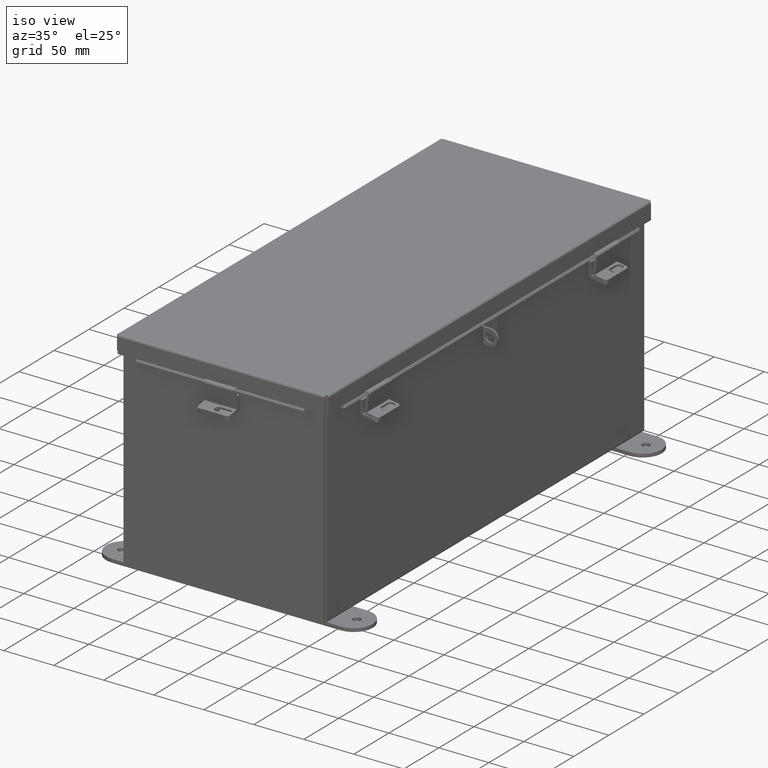
[diagram: clean part render]
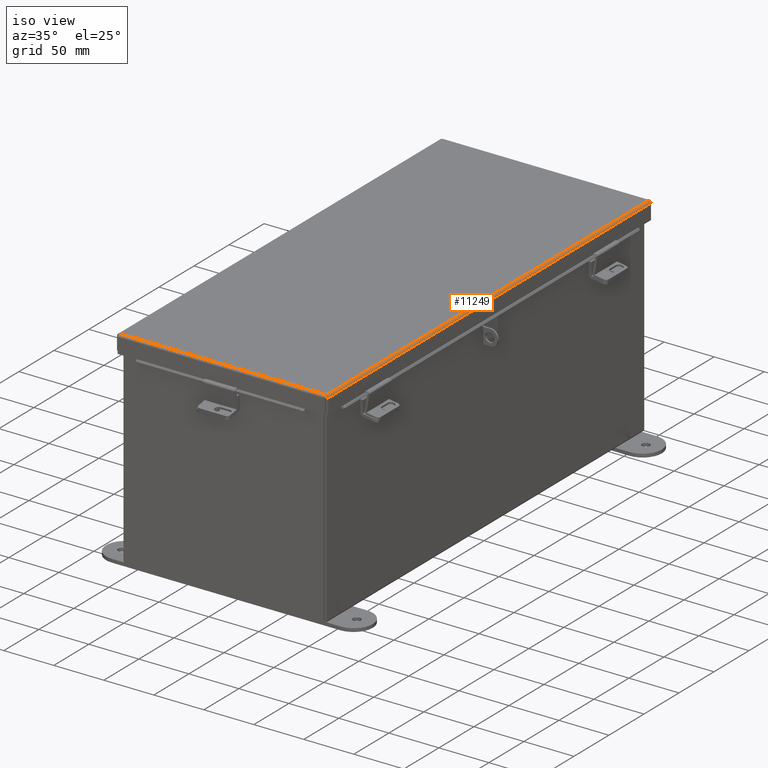
[diagram: same view with one face highlighted and labeled with its STEP entity id]
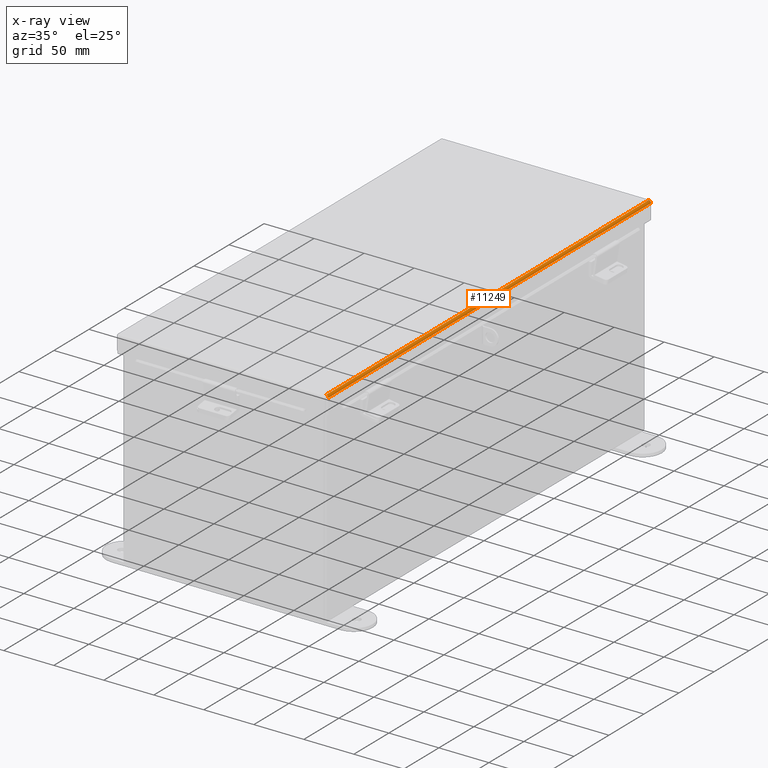
[diagram: x-ray of the same camera — body ghosted, the highlighted face saturated]
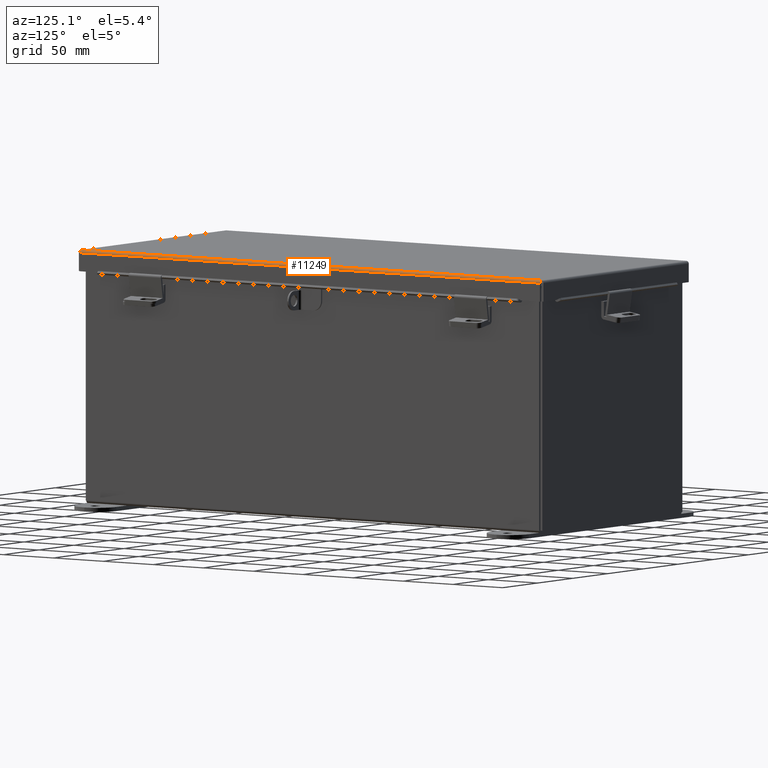
[diagram: same view with one face highlighted and labeled with its STEP entity id]
A machine part, iso view. The second image highlights one B-rep face of the part: STEP entity #11249.
The next image is the same camera in x-ray: the body ghosted, the highlighted face saturated — about 0% of this face is hidden behind the body in this view.
A second angle (auxiliary view) of the same face is appended — the face is thin or edge-on in the first view.
In plain terms, the highlighted cylindrical surface (edge-blend (fillet) strip) has radius 2.2276 mm, axis along (-0, -1, -0).
Its self-contained STEP definition (entity closure, byte-faithful):
#143 = CARTESIAN_POINT ( 'NONE',  ( -4.156250000000000900, -9.073984854505788200, 0.001520096845004342400 ) ) ;
#392 = DIRECTION ( 'NONE',  ( -8.734826358065578900E-032, 1.000000000000000000, 2.983588252466091100E-017 ) ) ;
#482 = EDGE_LOOP ( 'NONE', ( #15829, #5558, #13480, #4594 ) ) ;
#714 = CARTESIAN_POINT ( 'NONE',  ( -4.091505289458310400, 9.069538155364689700, -0.07241740374381232200 ) ) ;
#2151 = CARTESIAN_POINT ( 'NONE',  ( -4.068550000000001000, 9.068550000000000100, -0.07469999999999033000 ) ) ;
#2209 = CARTESIAN_POINT ( 'NONE',  ( -4.122445747341800800, 9.071020388411723100, -0.05713078207832108400 ) ) ;
#2243 = CARTESIAN_POINT ( 'NONE',  ( -4.068550000000001000, 9.068550000000000100, -0.07469999999999033000 ) ) ;
#2352 = B_SPLINE_CURVE_WITH_KNOTS ( 'NONE', 3,
 ( #2151, #6638, #714, #11160, #2209, #12643, #3692, #14103, #5177, #15591 ),
 .UNSPECIFIED., .F., .F.,
 ( 4, 2, 2, 2, 4 ),
 ( 0.0000000000000000000, 0.2500000000000000000, 0.5000000000000000000, 0.7500000000000000000, 1.000000000000000000 ),
 .UNSPECIFIED. ) ;
#3692 = CARTESIAN_POINT ( 'NONE',  ( -4.145181066258670600, 9.072502621458758300, -0.03116738457852801300 ) ) ;
#4594 = ORIENTED_EDGE ( 'NONE', *, *, #14956, .F. ) ;
#4609 = CARTESIAN_POINT ( 'NONE',  ( -4.145181066258667900, -9.072502621458756500, -0.03116738457853013300 ) ) ;
#5177 = CARTESIAN_POINT ( 'NONE',  ( -4.156250000000000900, 9.073984854505791700, 0.001520096845007725800 ) ) ;
#5558 = ORIENTED_EDGE ( 'NONE', *, *, #13467, .F. ) ;
#6125 = CARTESIAN_POINT ( 'NONE',  ( -4.122445747341799900, -9.071020388411721300, -0.05713078207832199300 ) ) ;
#6429 = LINE ( 'NONE', #9350, #14788 ) ;
#6628 = DIRECTION ( 'NONE',  ( -1.049351150792752600E-032, -1.000000000000000000, 0.0000000000000000000 ) ) ;
#6638 = CARTESIAN_POINT ( 'NONE',  ( -4.080029903154994000, 9.069044077682344000, -0.07470000000000107100 ) ) ;
#7397 = DIRECTION ( 'NONE',  ( 1.049351150792752600E-032, 1.000000000000000000, -0.0000000000000000000 ) ) ;
#7536 = VERTEX_POINT ( 'NONE', #10518 ) ;
#7647 = CARTESIAN_POINT ( 'NONE',  ( -4.091505289458308600, -9.069538155364689700, -0.07241740374381240600 ) ) ;
#7748 = CARTESIAN_POINT ( 'NONE',  ( -4.156250000000000900, -9.074478932188133800, 0.01300000000000010700 ) ) ;
#8658 = VECTOR ( 'NONE', #7397, 39.37007874015748100 ) ;
#9084 = CARTESIAN_POINT ( 'NONE',  ( -4.156250000000000900, -9.074478932188133800, 0.01300000000000010700 ) ) ;
#9129 = LINE ( 'NONE', #16272, #8658 ) ;
#9153 = CARTESIAN_POINT ( 'NONE',  ( -4.068550000000000100, -9.068550000000000100, -0.07470000000000015500 ) ) ;
#9350 = CARTESIAN_POINT ( 'NONE',  ( -4.156249999999995600, 9.156250000000000000, 0.01300000000000010700 ) ) ;
#10518 = CARTESIAN_POINT ( 'NONE',  ( -4.156249999999995600, 9.074478932188133800, 0.01300000000000010700 ) ) ;
#11081 = DIRECTION ( 'NONE',  ( -1.000000000000000000, 0.0000000000000000000, -3.577373637655407700E-015 ) ) ;
#11160 = CARTESIAN_POINT ( 'NONE',  ( -4.112717384578529000, 9.070526310729377400, -0.06363106625866923900 ) ) ;
#11249 = ADVANCED_FACE ( 'NONE', ( #16034 ), #19090, .T. ) ;
#12225 = VERTEX_POINT ( 'NONE', #7748 ) ;
#12643 = CARTESIAN_POINT ( 'NONE',  ( -4.138680782078322000, 9.072008543776412600, -0.04089574734180037600 ) ) ;
#12736 = B_SPLINE_CURVE_WITH_KNOTS ( 'NONE', 3,
 ( #9084, #143, #13554, #4609, #15017, #6125, #16526, #7647, #18028, #9153 ),
 .UNSPECIFIED., .F., .F.,
 ( 4, 2, 2, 2, 4 ),
 ( 0.0000000000000000000, 0.2500000000000000000, 0.5000000000000000000, 0.7500000000000000000, 1.000000000000000000 ),
 .UNSPECIFIED. ) ;
#13467 = EDGE_CURVE ( 'NONE', #12225, #15605, #12736, .T. ) ;
#13480 = ORIENTED_EDGE ( 'NONE', *, *, #13560, .T. ) ;
#13554 = CARTESIAN_POINT ( 'NONE',  ( -4.153967403743812300, -9.073490776823444300, -0.009955289458311596100 ) ) ;
#13560 = EDGE_CURVE ( 'NONE', #12225, #7536, #6429, .T. ) ;
#14103 = CARTESIAN_POINT ( 'NONE',  ( -4.153967403743813200, 9.073490776823444300, -0.009955289458308626300 ) ) ;
#14788 = VECTOR ( 'NONE', #392, 39.37007874015748100 ) ;
#14956 = EDGE_CURVE ( 'NONE', #16733, #7536, #2352, .T. ) ;
#15017 = CARTESIAN_POINT ( 'NONE',  ( -4.138680782078320200, -9.072008543776412600, -0.04089574734180205500 ) ) ;
#15506 = CARTESIAN_POINT ( 'NONE',  ( -4.068550000000000100, -9.074478932188133800, 0.01299999999999901400 ) ) ;
#15591 = CARTESIAN_POINT ( 'NONE',  ( -4.156249999999995600, 9.074478932188133800, 0.01300000000000010700 ) ) ;
#15605 = VERTEX_POINT ( 'NONE', #15649 ) ;
#15649 = CARTESIAN_POINT ( 'NONE',  ( -4.068550000000000100, -9.068550000000000100, -0.07470000000000015500 ) ) ;
#15829 = ORIENTED_EDGE ( 'NONE', *, *, #17052, .F. ) ;
#16034 = FACE_OUTER_BOUND ( 'NONE', #482, .T. ) ;
#16272 = CARTESIAN_POINT ( 'NONE',  ( -4.068550000000005400, -9.074478932188133800, -0.07470000000000015500 ) ) ;
#16526 = CARTESIAN_POINT ( 'NONE',  ( -4.112717384578528100, -9.070526310729379200, -0.06363106625866980800 ) ) ;
#16733 = VERTEX_POINT ( 'NONE', #2243 ) ;
#17052 = EDGE_CURVE ( 'NONE', #15605, #16733, #9129, .T. ) ;
#17792 = AXIS2_PLACEMENT_3D ( 'NONE', #15506, #6628, #11081 ) ;
#18028 = CARTESIAN_POINT ( 'NONE',  ( -4.080029903154993100, -9.069044077682345800, -0.07470000000000109900 ) ) ;
#19090 = CYLINDRICAL_SURFACE ( 'NONE', #17792, 0.08770000000000026400 ) ;